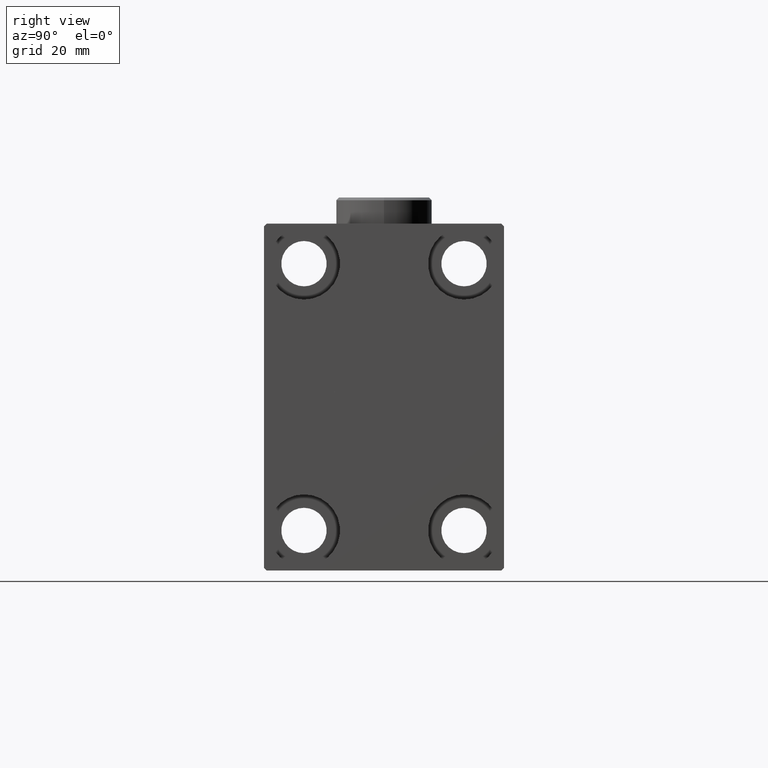
[diagram: clean part render]
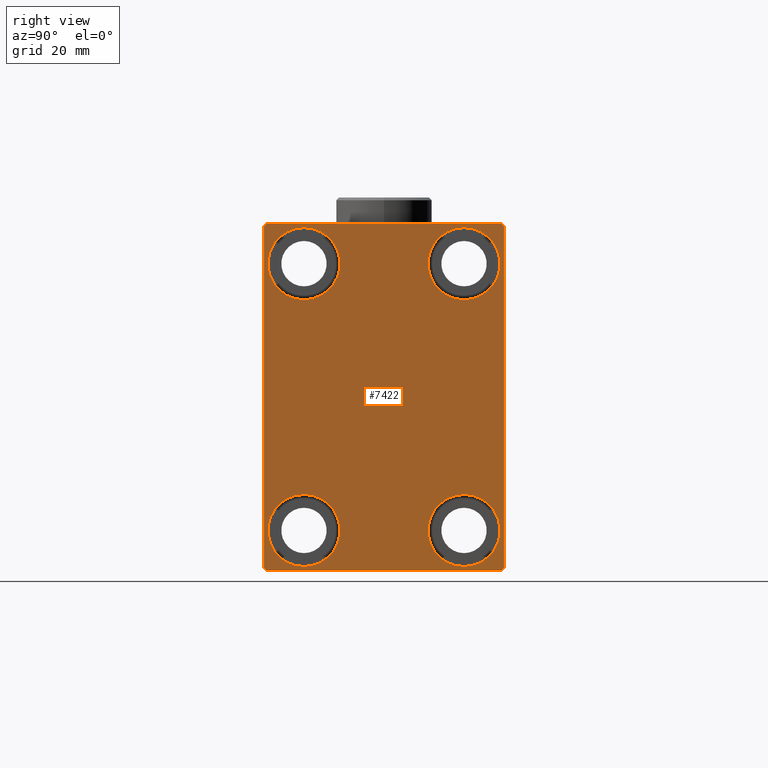
[diagram: same view with one face highlighted and labeled with its STEP entity id]
A machine part, right view. The second image highlights one B-rep face of the part: STEP entity #7422.
In plain terms, the highlighted planar face has unit normal (1, 0, 0).
Its self-contained STEP definition (entity closure, byte-faithful):
#27 = EDGE_CURVE ( 'NONE', #28694, #2984, #41665, .T. ) ;
#93 = CIRCLE ( 'NONE', #30380, 6.749999999999999112 ) ;
#429 = FACE_BOUND ( 'NONE', #1873, .T. ) ;
#684 = ORIENTED_EDGE ( 'NONE', *, *, #34398, .T. ) ;
#720 = DIRECTION ( 'NONE',  ( -1.000000000000000000, -0.000000000000000000, -0.000000000000000000 ) ) ;
#771 = EDGE_CURVE ( 'NONE', #11765, #40250, #45886, .T. ) ;
#1007 = VECTOR ( 'NONE', #27861, 999.9999999999998863 ) ;
#1185 = DIRECTION ( 'NONE',  ( -1.000000000000000000, -0.000000000000000000, -0.000000000000000000 ) ) ;
#1368 = CARTESIAN_POINT ( 'NONE',  ( 70.00000000000000000, 0.000000000000000000, 0.000000000000000000 ) ) ;
#1406 = CARTESIAN_POINT ( 'NONE',  ( 70.00000000000000000, -15.00000000000000355, -25.00000000000000000 ) ) ;
#1497 = VERTEX_POINT ( 'NONE', #42263 ) ;
#1873 = EDGE_LOOP ( 'NONE', ( #7430, #684 ) ) ;
#2021 = ORIENTED_EDGE ( 'NONE', *, *, #45561, .T. ) ;
#2915 = CARTESIAN_POINT ( 'NONE',  ( 70.00000000000000000, 14.99999999999999645, -25.00000000000000000 ) ) ;
#2984 = VERTEX_POINT ( 'NONE', #42010 ) ;
#3372 = DIRECTION ( 'NONE',  ( -1.000000000000000000, -0.000000000000000000, -0.000000000000000000 ) ) ;
#3748 = CARTESIAN_POINT ( 'NONE',  ( 70.00000000000000000, 22.00000000000001421, -32.50000000000000711 ) ) ;
#3847 = VECTOR ( 'NONE', #9843, 1000.000000000000114 ) ;
#3983 = FACE_BOUND ( 'NONE', #25701, .T. ) ;
#4130 = VERTEX_POINT ( 'NONE', #11906 ) ;
#4398 = CARTESIAN_POINT ( 'NONE',  ( 70.00000000000000000, -22.50000000000000711, -32.50000000000000711 ) ) ;
#4634 = CARTESIAN_POINT ( 'NONE',  ( 70.00000000000000000, 15.00000000000000355, 25.00000000000000000 ) ) ;
#4709 = VERTEX_POINT ( 'NONE', #6720 ) ;
#4733 = CARTESIAN_POINT ( 'NONE',  ( 70.00000000000000000, 15.00000000000000355, 25.00000000000000000 ) ) ;
#4761 = DIRECTION ( 'NONE',  ( 0.000000000000000000, 0.000000000000000000, 1.000000000000000000 ) ) ;
#4960 = CARTESIAN_POINT ( 'NONE',  ( 70.00000000000000000, 27.25000000000032685, -27.24999999999957012 ) ) ;
#5075 = ORIENTED_EDGE ( 'NONE', *, *, #12092, .T. ) ;
#5870 = CARTESIAN_POINT ( 'NONE',  ( 70.00000000000000000, 14.99999999999999645, -18.25000000000000355 ) ) ;
#6172 = CARTESIAN_POINT ( 'NONE',  ( 70.00000000000000000, 22.50000000000000000, -32.00000000000002132 ) ) ;
#6720 = CARTESIAN_POINT ( 'NONE',  ( 70.00000000000000000, 22.49999999999999289, 31.99999999999999289 ) ) ;
#7355 = CIRCLE ( 'NONE', #35364, 6.749999999999999112 ) ;
#7422 = ADVANCED_FACE ( 'NONE', ( #46868, #36226, #3983, #429, #14901 ), #40932, .T. ) ;
#7430 = ORIENTED_EDGE ( 'NONE', *, *, #43196, .T. ) ;
#8237 = EDGE_CURVE ( 'NONE', #38628, #4709, #38582, .T. ) ;
#8636 = CARTESIAN_POINT ( 'NONE',  ( 70.00000000000000000, 14.99999999999999645, -31.75000000000000000 ) ) ;
#8934 = EDGE_CURVE ( 'NONE', #36311, #1497, #93, .T. ) ;
#9444 = DIRECTION ( 'NONE',  ( 0.000000000000000000, -1.000000000000000000, -1.541976423090495387E-16 ) ) ;
#9843 = DIRECTION ( 'NONE',  ( 0.000000000000000000, -0.7071067811865474617, -0.7071067811865474617 ) ) ;
#10563 = ORIENTED_EDGE ( 'NONE', *, *, #24265, .T. ) ;
#10938 = CARTESIAN_POINT ( 'NONE',  ( 70.00000000000000000, -14.99999999999999645, 25.00000000000000000 ) ) ;
#11192 = AXIS2_PLACEMENT_3D ( 'NONE', #1406, #40267, #15164 ) ;
#11765 = VERTEX_POINT ( 'NONE', #5870 ) ;
#11865 = CARTESIAN_POINT ( 'NONE',  ( 70.00000000000000000, -15.00000000000000355, -25.00000000000000000 ) ) ;
#11906 = CARTESIAN_POINT ( 'NONE',  ( 70.00000000000000000, -14.99999999999999645, 31.75000000000000000 ) ) ;
#12026 = ORIENTED_EDGE ( 'NONE', *, *, #771, .T. ) ;
#12092 = EDGE_CURVE ( 'NONE', #2984, #26879, #38508, .T. ) ;
#12490 = VERTEX_POINT ( 'NONE', #41546 ) ;
#12512 = CARTESIAN_POINT ( 'NONE',  ( 70.00000000000000000, -14.99999999999999645, 25.00000000000000000 ) ) ;
#12526 = ORIENTED_EDGE ( 'NONE', *, *, #19514, .T. ) ;
#12589 = EDGE_LOOP ( 'NONE', ( #27267, #5075, #28820, #46271, #38309, #20924, #33523, #22968 ) ) ;
#12869 = DIRECTION ( 'NONE',  ( 0.000000000000000000, 0.000000000000000000, -1.000000000000000000 ) ) ;
#12938 = CARTESIAN_POINT ( 'NONE',  ( 70.00000000000000000, -27.25000000000032330, -27.24999999999957012 ) ) ;
#13586 = DIRECTION ( 'NONE',  ( 0.000000000000000000, 0.000000000000000000, 1.000000000000000000 ) ) ;
#13972 = ORIENTED_EDGE ( 'NONE', *, *, #8934, .T. ) ;
#14901 = FACE_OUTER_BOUND ( 'NONE', #12589, .T. ) ;
#15164 = DIRECTION ( 'NONE',  ( 0.000000000000000000, 0.000000000000000000, 1.000000000000000000 ) ) ;
#15489 = VECTOR ( 'NONE', #18621, 1000.000000000000000 ) ;
#15637 = LINE ( 'NONE', #4960, #45735 ) ;
#15869 = DIRECTION ( 'NONE',  ( -0.000000000000000000, 0.7071067811865376918, 0.7071067811865573427 ) ) ;
#16293 = CIRCLE ( 'NONE', #20851, 6.749999999999999112 ) ;
#17021 = VECTOR ( 'NONE', #9444, 1000.000000000000000 ) ;
#17356 = CARTESIAN_POINT ( 'NONE',  ( 70.00000000000000000, 14.99999999999999645, -25.00000000000000000 ) ) ;
#17486 = DIRECTION ( 'NONE',  ( 0.000000000000000000, -1.067522139062650425E-16, 1.000000000000000000 ) ) ;
#17535 = CARTESIAN_POINT ( 'NONE',  ( 70.00000000000000000, 15.00000000000000355, 18.25000000000000355 ) ) ;
#18063 = DIRECTION ( 'NONE',  ( 0.000000000000000000, 0.000000000000000000, 1.000000000000000000 ) ) ;
#18266 = DIRECTION ( 'NONE',  ( 0.000000000000000000, 0.000000000000000000, 1.000000000000000000 ) ) ;
#18384 = EDGE_CURVE ( 'NONE', #23107, #18455, #45617, .T. ) ;
#18432 = EDGE_CURVE ( 'NONE', #4709, #28694, #20269, .T. ) ;
#18455 = VERTEX_POINT ( 'NONE', #27162 ) ;
#18621 = DIRECTION ( 'NONE',  ( 0.000000000000000000, 1.000000000000000000, 0.000000000000000000 ) ) ;
#18646 = CIRCLE ( 'NONE', #22434, 6.749999999999999112 ) ;
#18737 = EDGE_CURVE ( 'NONE', #1497, #36311, #36563, .T. ) ;
#19457 = CARTESIAN_POINT ( 'NONE',  ( 70.00000000000000000, 21.99999999999999289, 32.50000000000000000 ) ) ;
#19514 = EDGE_CURVE ( 'NONE', #12490, #4130, #35837, .T. ) ;
#20269 = LINE ( 'NONE', #23596, #1007 ) ;
#20851 = AXIS2_PLACEMENT_3D ( 'NONE', #17356, #46730, #18063 ) ;
#20924 = ORIENTED_EDGE ( 'NONE', *, *, #36523, .T. ) ;
#22171 = LINE ( 'NONE', #4398, #15489 ) ;
#22284 = EDGE_CURVE ( 'NONE', #18455, #26366, #22171, .T. ) ;
#22434 = AXIS2_PLACEMENT_3D ( 'NONE', #12512, #27432, #30511 ) ;
#22467 = DIRECTION ( 'NONE',  ( 0.000000000000000000, 0.000000000000000000, -1.000000000000000000 ) ) ;
#22669 = EDGE_CURVE ( 'NONE', #26879, #23107, #28242, .T. ) ;
#22968 = ORIENTED_EDGE ( 'NONE', *, *, #18432, .T. ) ;
#23107 = VERTEX_POINT ( 'NONE', #36877 ) ;
#23596 = CARTESIAN_POINT ( 'NONE',  ( 70.00000000000000000, 27.25000000000014921, 27.24999999999976907 ) ) ;
#24265 = EDGE_CURVE ( 'NONE', #40250, #11765, #16293, .T. ) ;
#25701 = EDGE_LOOP ( 'NONE', ( #13972, #38164 ) ) ;
#26366 = VERTEX_POINT ( 'NONE', #3748 ) ;
#26398 = CARTESIAN_POINT ( 'NONE',  ( 70.00000000000000000, -15.00000000000000355, -31.75000000000000000 ) ) ;
#26879 = VERTEX_POINT ( 'NONE', #42449 ) ;
#26917 = DIRECTION ( 'NONE',  ( 0.000000000000000000, 0.000000000000000000, 1.000000000000000000 ) ) ;
#27162 = CARTESIAN_POINT ( 'NONE',  ( 70.00000000000000000, -22.00000000000002132, -32.50000000000000711 ) ) ;
#27267 = ORIENTED_EDGE ( 'NONE', *, *, #27, .T. ) ;
#27432 = DIRECTION ( 'NONE',  ( -1.000000000000000000, -0.000000000000000000, -0.000000000000000000 ) ) ;
#27861 = DIRECTION ( 'NONE',  ( -0.000000000000000000, -0.7071067811865425767, 0.7071067811865525687 ) ) ;
#28242 = LINE ( 'NONE', #32025, #38981 ) ;
#28694 = VERTEX_POINT ( 'NONE', #19457 ) ;
#28710 = VERTEX_POINT ( 'NONE', #30360 ) ;
#28820 = ORIENTED_EDGE ( 'NONE', *, *, #22669, .T. ) ;
#29561 = VECTOR ( 'NONE', #17486, 1000.000000000000000 ) ;
#30270 = DIRECTION ( 'NONE',  ( 1.000000000000000000, 0.000000000000000000, 0.000000000000000000 ) ) ;
#30360 = CARTESIAN_POINT ( 'NONE',  ( 70.00000000000000000, -15.00000000000000355, -18.25000000000000355 ) ) ;
#30380 = AXIS2_PLACEMENT_3D ( 'NONE', #4733, #1185, #40752 ) ;
#30511 = DIRECTION ( 'NONE',  ( 0.000000000000000000, 0.000000000000000000, 1.000000000000000000 ) ) ;
#30531 = AXIS2_PLACEMENT_3D ( 'NONE', #10938, #40307, #4761 ) ;
#31275 = VECTOR ( 'NONE', #41604, 1000.000000000000000 ) ;
#32025 = CARTESIAN_POINT ( 'NONE',  ( 70.00000000000000000, -22.50000000000000711, 32.49999999999999289 ) ) ;
#33523 = ORIENTED_EDGE ( 'NONE', *, *, #8237, .T. ) ;
#33552 = DIRECTION ( 'NONE',  ( -1.000000000000000000, -0.000000000000000000, -0.000000000000000000 ) ) ;
#34398 = EDGE_CURVE ( 'NONE', #28710, #34967, #45981, .T. ) ;
#34967 = VERTEX_POINT ( 'NONE', #26398 ) ;
#35364 = AXIS2_PLACEMENT_3D ( 'NONE', #11865, #720, #18266 ) ;
#35616 = AXIS2_PLACEMENT_3D ( 'NONE', #1368, #30270, #22467 ) ;
#35837 = CIRCLE ( 'NONE', #30531, 6.749999999999999112 ) ;
#36226 = FACE_BOUND ( 'NONE', #41448, .T. ) ;
#36311 = VERTEX_POINT ( 'NONE', #17535 ) ;
#36523 = EDGE_CURVE ( 'NONE', #26366, #38628, #15637, .T. ) ;
#36563 = CIRCLE ( 'NONE', #43375, 6.749999999999999112 ) ;
#36877 = CARTESIAN_POINT ( 'NONE',  ( 70.00000000000000000, -22.50000000000000711, -32.00000000000000711 ) ) ;
#37574 = AXIS2_PLACEMENT_3D ( 'NONE', #2915, #3372, #13586 ) ;
#38164 = ORIENTED_EDGE ( 'NONE', *, *, #18737, .T. ) ;
#38309 = ORIENTED_EDGE ( 'NONE', *, *, #22284, .T. ) ;
#38508 = LINE ( 'NONE', #45611, #3847 ) ;
#38582 = LINE ( 'NONE', #38810, #29561 ) ;
#38628 = VERTEX_POINT ( 'NONE', #6172 ) ;
#38810 = CARTESIAN_POINT ( 'NONE',  ( 70.00000000000000000, 22.50000000000000000, -32.50000000000000711 ) ) ;
#38981 = VECTOR ( 'NONE', #12869, 1000.000000000000000 ) ;
#40250 = VERTEX_POINT ( 'NONE', #8636 ) ;
#40267 = DIRECTION ( 'NONE',  ( -1.000000000000000000, -0.000000000000000000, -0.000000000000000000 ) ) ;
#40307 = DIRECTION ( 'NONE',  ( -1.000000000000000000, -0.000000000000000000, -0.000000000000000000 ) ) ;
#40752 = DIRECTION ( 'NONE',  ( 0.000000000000000000, 0.000000000000000000, 1.000000000000000000 ) ) ;
#40932 = PLANE ( 'NONE',  #35616 ) ;
#41448 = EDGE_LOOP ( 'NONE', ( #12526, #2021 ) ) ;
#41546 = CARTESIAN_POINT ( 'NONE',  ( 70.00000000000000000, -14.99999999999999645, 18.25000000000000355 ) ) ;
#41604 = DIRECTION ( 'NONE',  ( -0.000000000000000000, 0.7071067811865378028, -0.7071067811865573427 ) ) ;
#41665 = LINE ( 'NONE', #45917, #17021 ) ;
#42010 = CARTESIAN_POINT ( 'NONE',  ( 70.00000000000000000, -21.99999999999999289, 32.49999999999999289 ) ) ;
#42263 = CARTESIAN_POINT ( 'NONE',  ( 70.00000000000000000, 15.00000000000000355, 31.75000000000000000 ) ) ;
#42449 = CARTESIAN_POINT ( 'NONE',  ( 70.00000000000000000, -22.50000000000000711, 31.99999999999999289 ) ) ;
#43196 = EDGE_CURVE ( 'NONE', #34967, #28710, #7355, .T. ) ;
#43375 = AXIS2_PLACEMENT_3D ( 'NONE', #4634, #33552, #26917 ) ;
#45561 = EDGE_CURVE ( 'NONE', #4130, #12490, #18646, .T. ) ;
#45611 = CARTESIAN_POINT ( 'NONE',  ( 70.00000000000000000, -27.25000000000000000, 27.25000000000000000 ) ) ;
#45617 = LINE ( 'NONE', #12938, #31275 ) ;
#45735 = VECTOR ( 'NONE', #15869, 1000.000000000000114 ) ;
#45886 = CIRCLE ( 'NONE', #37574, 6.749999999999999112 ) ;
#45917 = CARTESIAN_POINT ( 'NONE',  ( 70.00000000000000000, 22.49999999999999289, 32.50000000000000000 ) ) ;
#45981 = CIRCLE ( 'NONE', #11192, 6.749999999999999112 ) ;
#46271 = ORIENTED_EDGE ( 'NONE', *, *, #18384, .T. ) ;
#46626 = EDGE_LOOP ( 'NONE', ( #10563, #12026 ) ) ;
#46730 = DIRECTION ( 'NONE',  ( -1.000000000000000000, -0.000000000000000000, -0.000000000000000000 ) ) ;
#46868 = FACE_BOUND ( 'NONE', #46626, .T. ) ;